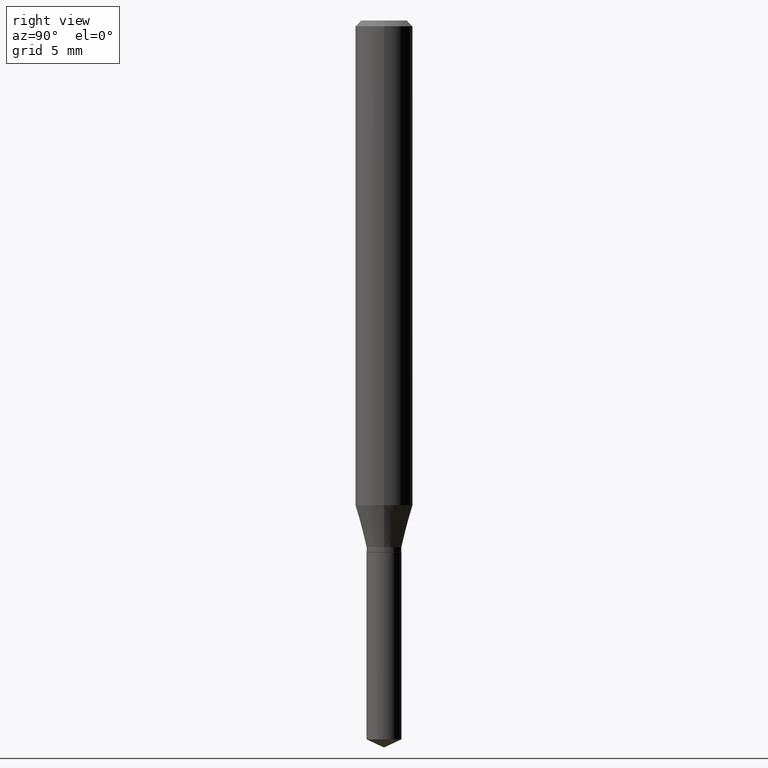
[diagram: clean part render]
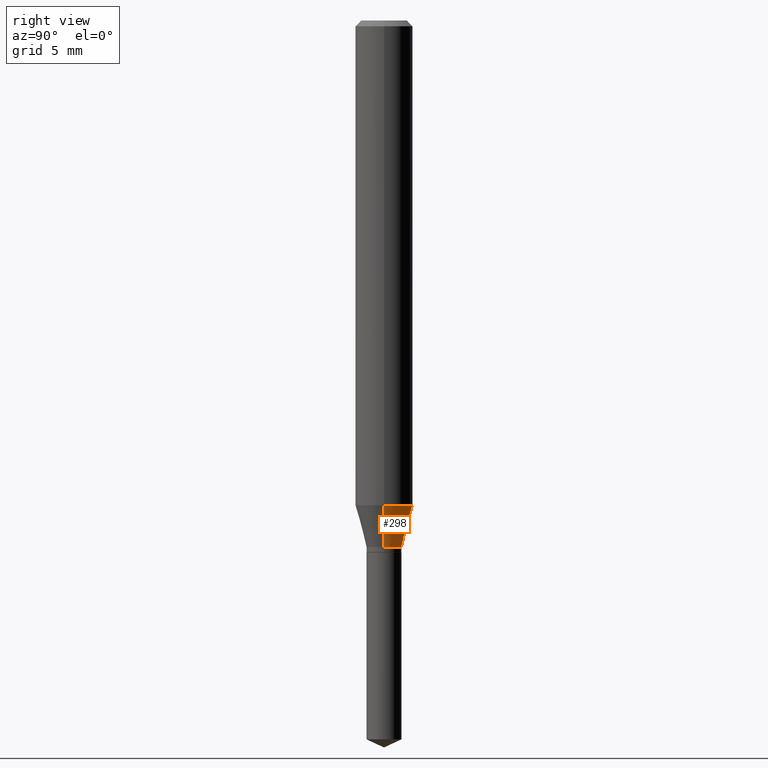
[diagram: same view with one face highlighted and labeled with its STEP entity id]
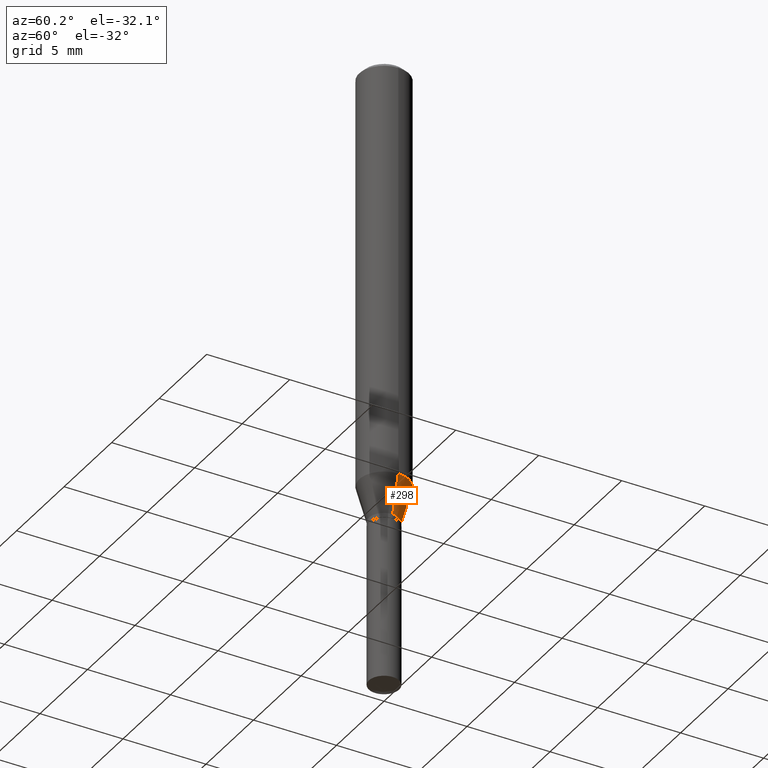
[diagram: same view with one face highlighted and labeled with its STEP entity id]
A machine part, right view. The second image highlights one B-rep face of the part: STEP entity #298.
A second angle (auxiliary view) of the same face is appended — the face is thin or edge-on in the first view.
In plain terms, the highlighted conical surface has half-angle 15 deg.
Its self-contained STEP definition (entity closure, byte-faithful):
#9 = DIRECTION ( 'NONE',  ( 1.000000000000000000, -6.982962677686265133E-15, 0.000000000000000000 ) ) ;
#20 = VERTEX_POINT ( 'NONE', #134 ) ;
#37 = DIRECTION ( 'NONE',  ( -2.445468806185136597E-29, 3.491481338843145583E-15, 1.000000000000000000 ) ) ;
#60 = CIRCLE ( 'NONE', #90, 0.03599999999999999728 ) ;
#63 = DIRECTION ( 'NONE',  ( -2.445468806185136597E-29, 3.491481338843145583E-15, 1.000000000000000000 ) ) ;
#70 = DIRECTION ( 'NONE',  ( -2.445468806185136597E-29, 3.491481338843145583E-15, 1.000000000000000000 ) ) ;
#88 = FACE_OUTER_BOUND ( 'NONE', #103, .T. ) ;
#90 = AXIS2_PLACEMENT_3D ( 'NONE', #465, #37, #9 ) ;
#98 = DIRECTION ( 'NONE',  ( -0.2588190451025212391, 5.211531920934549464E-15, 0.9659258262890679791 ) ) ;
#101 = DIRECTION ( 'NONE',  ( 1.000000000000000000, -6.982962677686265133E-15, 0.000000000000000000 ) ) ;
#103 = EDGE_LOOP ( 'NONE', ( #168, #275, #418, #178 ) ) ;
#113 = VECTOR ( 'NONE', #98, 39.37007874015748854 ) ;
#124 = CONICAL_SURFACE ( 'NONE', #344, 0.03599999999999999728, 0.2617993877991499629 ) ;
#131 = CARTESIAN_POINT ( 'NONE',  ( 0.03599999999999999728, -4.035104983301021910E-15, -1.083699999999999886 ) ) ;
#134 = CARTESIAN_POINT ( 'NONE',  ( -0.03599999999999999728, -3.545904070925723094E-15, -1.083699999999999886 ) ) ;
#142 = VECTOR ( 'NONE', #292, 39.37007874015748854 ) ;
#165 = CARTESIAN_POINT ( 'NONE',  ( -0.03599999999999999728, -3.527922942030680819E-15, -1.083699999999999886 ) ) ;
#168 = ORIENTED_EDGE ( 'NONE', *, *, #217, .T. ) ;
#176 = CARTESIAN_POINT ( 'NONE',  ( -0.05905000000000011628, -3.063792449894915431E-15, -0.9976762288855370864 ) ) ;
#178 = ORIENTED_EDGE ( 'NONE', *, *, #395, .F. ) ;
#186 = CARTESIAN_POINT ( 'NONE',  ( 2.439786096412003375E-29, -3.483367935361255318E-15, -0.9976762288855370864 ) ) ;
#217 = EDGE_CURVE ( 'NONE', #486, #20, #60, .T. ) ;
#275 = ORIENTED_EDGE ( 'NONE', *, *, #370, .T. ) ;
#291 = AXIS2_PLACEMENT_3D ( 'NONE', #186, #70, #420 ) ;
#292 = DIRECTION ( 'NONE',  ( 0.2588190451025212391, 1.565188264969622362E-15, 0.9659258262890679791 ) ) ;
#298 = ADVANCED_FACE ( 'NONE', ( #88 ), #124, .T. ) ;
#299 = LINE ( 'NONE', #165, #113 ) ;
#300 = VERTEX_POINT ( 'NONE', #176 ) ;
#329 = LINE ( 'NONE', #131, #142 ) ;
#344 = AXIS2_PLACEMENT_3D ( 'NONE', #481, #63, #101 ) ;
#370 = EDGE_CURVE ( 'NONE', #20, #300, #299, .T. ) ;
#395 = EDGE_CURVE ( 'NONE', #486, #488, #329, .T. ) ;
#417 = CARTESIAN_POINT ( 'NONE',  ( 0.05905000000000011628, -3.895711881478630633E-15, -0.9976762288855370864 ) ) ;
#418 = ORIENTED_EDGE ( 'NONE', *, *, #455, .F. ) ;
#420 = DIRECTION ( 'NONE',  ( 1.000000000000000000, -6.982962677686266711E-15, 0.000000000000000000 ) ) ;
#453 = CARTESIAN_POINT ( 'NONE',  ( 0.03599999999999999728, -4.035104983301021910E-15, -1.083699999999999886 ) ) ;
#455 = EDGE_CURVE ( 'NONE', #488, #300, #466, .T. ) ;
#465 = CARTESIAN_POINT ( 'NONE',  ( 2.650154545262832776E-29, -3.783718326904316719E-15, -1.083699999999999886 ) ) ;
#466 = CIRCLE ( 'NONE', #291, 0.05905000000000011628 ) ;
#481 = CARTESIAN_POINT ( 'NONE',  ( 2.650154545262832776E-29, -3.783718326904316719E-15, -1.083699999999999886 ) ) ;
#486 = VERTEX_POINT ( 'NONE', #453 ) ;
#488 = VERTEX_POINT ( 'NONE', #417 ) ;